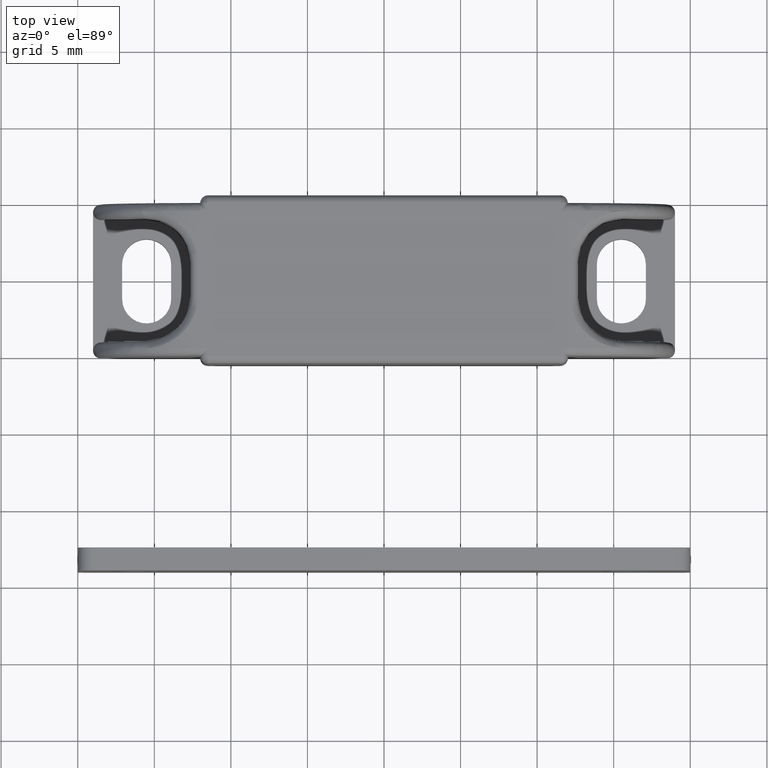
[diagram: clean part render]
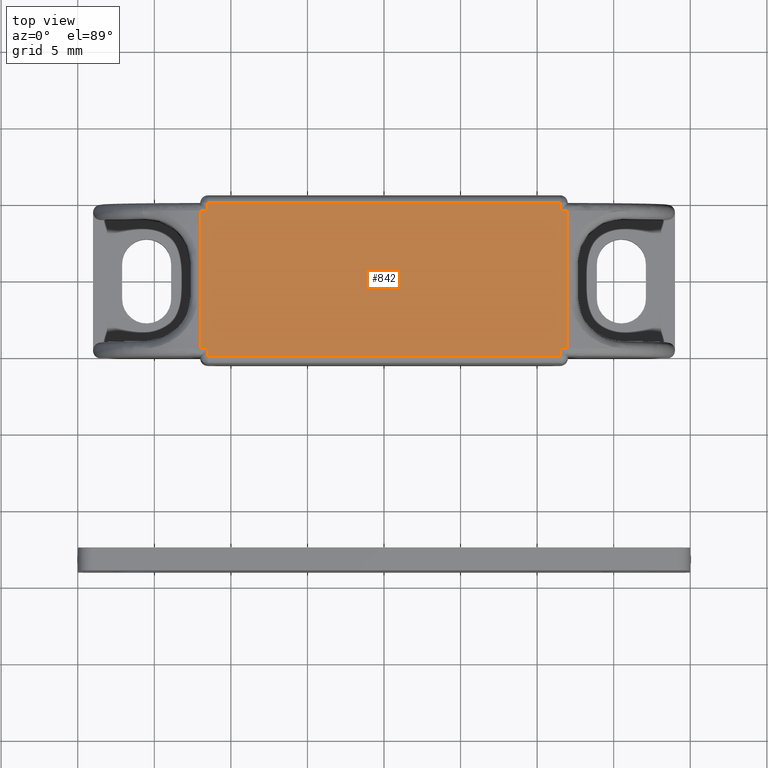
[diagram: same view with one face highlighted and labeled with its STEP entity id]
A machine part, top view. The second image highlights one B-rep face of the part: STEP entity #842.
In plain terms, the highlighted face is a freeform B-spline surface patch.
Its self-contained STEP definition (entity closure, byte-faithful):
#751=CARTESIAN_POINT('',(13.198799953483130,-5.499499980618060,9.0));
#752=CARTESIAN_POINT('',(-13.198800597213500,-5.499499980618060,9.0));
#753=CARTESIAN_POINT('',(13.198799953483130,5.499500248838961,9.0));
#754=CARTESIAN_POINT('',(-13.198800597213500,5.499500248838961,9.0));
#755=B_SPLINE_SURFACE_WITH_KNOTS('',1,1,((#751,#753),(#752,#754)),.UNSPECIFIED.,.F.,.F.,.U.,(2,2),(2,2),(0.0,26.397600550696630),(0.0,10.999000229457019),.UNSPECIFIED.);
#756=CARTESIAN_POINT('',(-11.500000000000000,5.0,9.0));
#757=VERTEX_POINT('',#756);
#758=CARTESIAN_POINT('',(-11.500000000000000,4.500000000000060,9.0));
#759=VERTEX_POINT('',#758);
#760=CARTESIAN_POINT('',(-11.500000000000000,5.0,9.0));
#761=CARTESIAN_POINT('',(-11.500000000000000,4.500000000000060,9.0));
#762=QUASI_UNIFORM_CURVE('',1,(#760,#761),.UNSPECIFIED.,.F.,.U.);
#763=EDGE_CURVE('',#757,#759,#762,.T.);
#764=ORIENTED_EDGE('',*,*,#763,.T.);
#765=CARTESIAN_POINT('',(-12.0,4.500000000000060,9.0));
#766=VERTEX_POINT('',#765);
#767=CARTESIAN_POINT('',(-11.500000000000000,4.500000000000060,9.0));
#768=CARTESIAN_POINT('',(-12.0,4.500000000000060,9.0));
#769=QUASI_UNIFORM_CURVE('',1,(#767,#768),.UNSPECIFIED.,.F.,.U.);
#770=EDGE_CURVE('',#759,#766,#769,.T.);
#771=ORIENTED_EDGE('',*,*,#770,.T.);
#772=CARTESIAN_POINT('',(-12.0,-4.500000000000060,9.0));
#773=VERTEX_POINT('',#772);
#774=CARTESIAN_POINT('',(-12.0,4.500000000000060,9.0));
#775=CARTESIAN_POINT('',(-12.0,-4.500000000000060,9.0));
#776=QUASI_UNIFORM_CURVE('',1,(#774,#775),.UNSPECIFIED.,.F.,.U.);
#777=EDGE_CURVE('',#766,#773,#776,.T.);
#778=ORIENTED_EDGE('',*,*,#777,.T.);
#779=CARTESIAN_POINT('',(-11.500000000000000,-4.499999999999949,9.0));
#780=VERTEX_POINT('',#779);
#781=CARTESIAN_POINT('',(-12.0,-4.500000000000060,9.0));
#782=CARTESIAN_POINT('',(-11.500000000000000,-4.499999999999949,9.0));
#783=QUASI_UNIFORM_CURVE('',1,(#781,#782),.UNSPECIFIED.,.F.,.U.);
#784=EDGE_CURVE('',#773,#780,#783,.T.);
#785=ORIENTED_EDGE('',*,*,#784,.T.);
#786=CARTESIAN_POINT('',(-11.500000000000000,-5.0,9.0));
#787=VERTEX_POINT('',#786);
#788=CARTESIAN_POINT('',(-11.500000000000000,-4.499999999999949,9.0));
#789=CARTESIAN_POINT('',(-11.500000000000000,-5.0,9.0));
#790=QUASI_UNIFORM_CURVE('',1,(#788,#789),.UNSPECIFIED.,.F.,.U.);
#791=EDGE_CURVE('',#780,#787,#790,.T.);
#792=ORIENTED_EDGE('',*,*,#791,.T.);
#793=CARTESIAN_POINT('',(11.499999999999799,-5.0,9.0));
#794=VERTEX_POINT('',#793);
#795=CARTESIAN_POINT('',(-11.500000000000000,-5.0,9.0));
#796=CARTESIAN_POINT('',(11.499999999999799,-5.0,9.0));
#797=QUASI_UNIFORM_CURVE('',1,(#795,#796),.UNSPECIFIED.,.F.,.U.);
#798=EDGE_CURVE('',#787,#794,#797,.T.);
#799=ORIENTED_EDGE('',*,*,#798,.T.);
#800=CARTESIAN_POINT('',(11.499999999999799,-4.500000000000000,9.0));
#801=VERTEX_POINT('',#800);
#802=CARTESIAN_POINT('',(11.499999999999799,-5.0,9.0));
#803=CARTESIAN_POINT('',(11.499999999999799,-4.500000000000000,9.0));
#804=QUASI_UNIFORM_CURVE('',1,(#802,#803),.UNSPECIFIED.,.F.,.U.);
#805=EDGE_CURVE('',#794,#801,#804,.T.);
#806=ORIENTED_EDGE('',*,*,#805,.T.);
#807=CARTESIAN_POINT('',(11.999999999999799,-4.500000000000060,9.0));
#808=VERTEX_POINT('',#807);
#809=CARTESIAN_POINT('',(11.499999999999799,-4.500000000000000,9.0));
#810=CARTESIAN_POINT('',(11.999999999999799,-4.500000000000060,9.0));
#811=QUASI_UNIFORM_CURVE('',1,(#809,#810),.UNSPECIFIED.,.F.,.U.);
#812=EDGE_CURVE('',#801,#808,#811,.T.);
#813=ORIENTED_EDGE('',*,*,#812,.T.);
#814=CARTESIAN_POINT('',(11.999999999999799,4.500000000000060,9.0));
#815=VERTEX_POINT('',#814);
#816=CARTESIAN_POINT('',(11.999999999999799,4.500000000000060,9.0));
#817=CARTESIAN_POINT('',(11.999999999999799,-4.500000000000060,9.0));
#818=QUASI_UNIFORM_CURVE('',1,(#816,#817),.UNSPECIFIED.,.F.,.U.);
#819=EDGE_CURVE('',#815,#808,#818,.T.);
#820=ORIENTED_EDGE('',*,*,#819,.F.);
#821=CARTESIAN_POINT('',(11.499999999999799,4.499999999999949,9.0));
#822=VERTEX_POINT('',#821);
#823=CARTESIAN_POINT('',(11.999999999999799,4.500000000000060,9.0));
#824=CARTESIAN_POINT('',(11.499999999999799,4.499999999999949,9.0));
#825=QUASI_UNIFORM_CURVE('',1,(#823,#824),.UNSPECIFIED.,.F.,.U.);
#826=EDGE_CURVE('',#815,#822,#825,.T.);
#827=ORIENTED_EDGE('',*,*,#826,.T.);
#828=CARTESIAN_POINT('',(11.499999999999799,5.0,9.0));
#829=VERTEX_POINT('',#828);
#830=CARTESIAN_POINT('',(11.499999999999799,4.499999999999949,9.0));
#831=CARTESIAN_POINT('',(11.499999999999799,5.0,9.0));
#832=QUASI_UNIFORM_CURVE('',1,(#830,#831),.UNSPECIFIED.,.F.,.U.);
#833=EDGE_CURVE('',#822,#829,#832,.T.);
#834=ORIENTED_EDGE('',*,*,#833,.T.);
#835=CARTESIAN_POINT('',(11.499999999999799,5.0,9.0));
#836=CARTESIAN_POINT('',(-11.500000000000000,5.0,9.0));
#837=QUASI_UNIFORM_CURVE('',1,(#835,#836),.UNSPECIFIED.,.F.,.U.);
#838=EDGE_CURVE('',#829,#757,#837,.T.);
#839=ORIENTED_EDGE('',*,*,#838,.T.);
#840=EDGE_LOOP('',(#764,#771,#778,#785,#792,#799,#806,#813,#820,#827,#834,#839));
#841=FACE_OUTER_BOUND('',#840,.T.);
#842=ADVANCED_FACE('',(#841),#755,.F.);